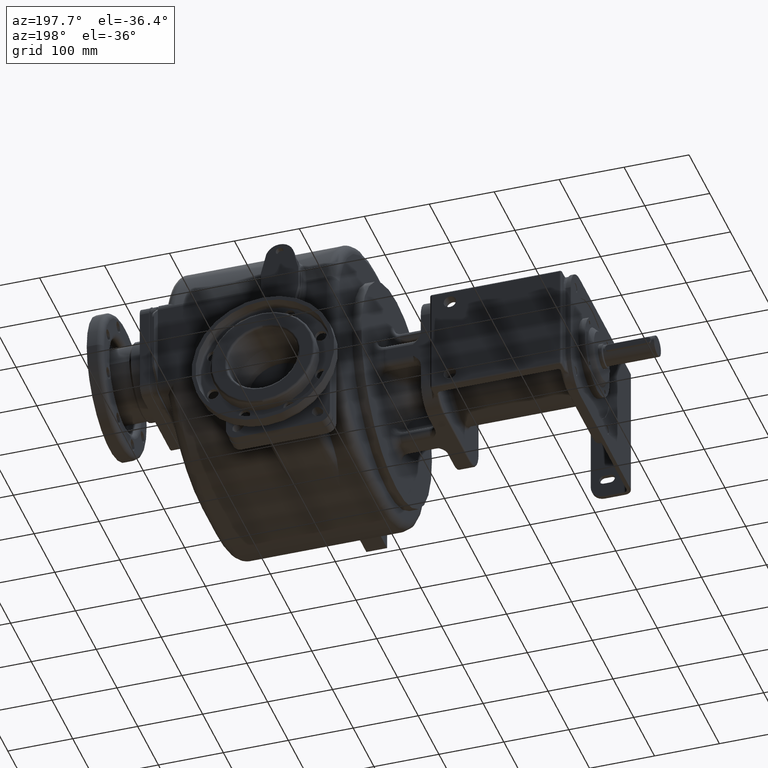
[diagram: clean part render]
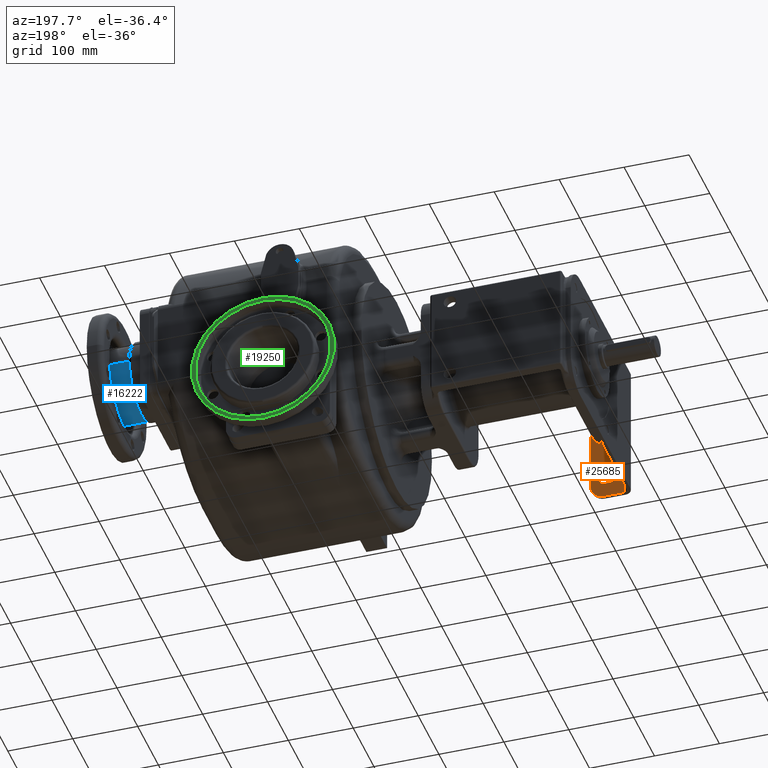
[diagram: same view with three faces highlighted in distinct colors, each labeled with its STEP entity id]
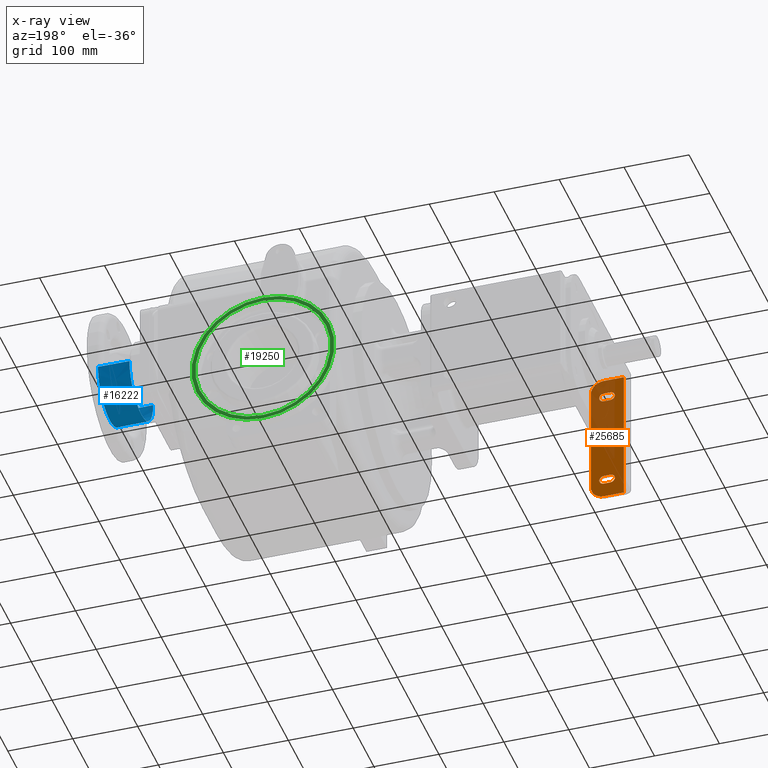
[diagram: x-ray of the same camera — body ghosted, the three highlighted faces saturated]
A machine part, auxiliary view with three faces highlighted in distinct colors.
The next image is the same camera in x-ray (body ghosted, the three faces saturated) — at least one of them is partly hidden behind the body in this view.
Their STEP definitions:

[orange] entity #25685 — the highlighted planar face has unit normal (0, 1, 0).
#8885=CARTESIAN_POINT('',(-3.515E2,6.E0,8.5E1));
#8886=DIRECTION('',(0.E0,1.E0,0.E0));
#8887=DIRECTION('',(0.E0,0.E0,1.E0));
#8888=AXIS2_PLACEMENT_3D('',#8885,#8886,#8887);
#8890=DIRECTION('',(1.E0,0.E0,0.E0));
#8891=VECTOR('',#8890,3.1E1);
#8892=CARTESIAN_POINT('',(-3.825E2,6.E0,1.05E2));
#8893=LINE('',#8892,#8891);
#8894=DIRECTION('',(-1.E0,0.E0,0.E0));
#8895=VECTOR('',#8894,3.1E1);
#8896=CARTESIAN_POINT('',(-3.515E2,6.E0,-1.05E2));
#8897=LINE('',#8896,#8895);
#8898=CARTESIAN_POINT('',(-3.515E2,6.E0,-8.5E1));
#8899=DIRECTION('',(0.E0,1.E0,0.E0));
#8900=DIRECTION('',(1.E0,0.E0,0.E0));
#8901=AXIS2_PLACEMENT_3D('',#8898,#8899,#8900);
#8903=DIRECTION('',(0.E0,0.E0,-1.E0));
#8904=VECTOR('',#8903,1.7E2);
#8905=CARTESIAN_POINT('',(-3.315E2,6.E0,8.5E1));
#8906=LINE('',#8905,#8904);
#8907=DIRECTION('',(1.E0,0.E0,0.E0));
#8908=VECTOR('',#8907,1.E1);
#8909=CARTESIAN_POINT('',(-3.615E2,6.E0,-8.2E1));
#8910=LINE('',#8909,#8908);
#8911=CARTESIAN_POINT('',(-3.615E2,6.E0,-7.5E1));
#8912=DIRECTION('',(0.E0,1.E0,0.E0));
#8913=DIRECTION('',(0.E0,0.E0,-1.E0));
#8914=AXIS2_PLACEMENT_3D('',#8911,#8912,#8913);
#8916=DIRECTION('',(-1.E0,0.E0,0.E0));
#8917=VECTOR('',#8916,1.E1);
#8918=CARTESIAN_POINT('',(-3.515E2,6.E0,-6.8E1));
#8919=LINE('',#8918,#8917);
#8920=CARTESIAN_POINT('',(-3.515E2,6.E0,-7.5E1));
#8921=DIRECTION('',(0.E0,1.E0,0.E0));
#8922=DIRECTION('',(0.E0,0.E0,1.E0));
#8923=AXIS2_PLACEMENT_3D('',#8920,#8921,#8922);
#8925=CARTESIAN_POINT('',(-3.615E2,6.E0,7.5E1));
#8926=DIRECTION('',(0.E0,1.E0,0.E0));
#8927=DIRECTION('',(0.E0,0.E0,-1.E0));
#8928=AXIS2_PLACEMENT_3D('',#8925,#8926,#8927);
#8930=DIRECTION('',(-1.E0,0.E0,0.E0));
#8931=VECTOR('',#8930,1.E1);
#8932=CARTESIAN_POINT('',(-3.515E2,6.E0,8.2E1));
#8933=LINE('',#8932,#8931);
#8934=CARTESIAN_POINT('',(-3.515E2,6.E0,7.5E1));
#8935=DIRECTION('',(0.E0,1.E0,0.E0));
#8936=DIRECTION('',(0.E0,0.E0,1.E0));
#8937=AXIS2_PLACEMENT_3D('',#8934,#8935,#8936);
#8939=DIRECTION('',(1.E0,0.E0,0.E0));
#8940=VECTOR('',#8939,1.E1);
#8941=CARTESIAN_POINT('',(-3.615E2,6.E0,6.8E1));
#8942=LINE('',#8941,#8940);
#8943=DIRECTION('',(0.E0,0.E0,1.E0));
#8944=VECTOR('',#8943,2.1E2);
#8945=CARTESIAN_POINT('',(-3.825E2,6.E0,-1.05E2));
#8946=LINE('',#8945,#8944);
#13723=CARTESIAN_POINT('',(-3.825E2,6.E0,-1.05E2));
#13724=CARTESIAN_POINT('',(-3.825E2,6.E0,1.05E2));
#13725=VERTEX_POINT('',#13723);
#13726=VERTEX_POINT('',#13724);
#13733=CARTESIAN_POINT('',(-3.615E2,6.E0,-8.2E1));
#13734=CARTESIAN_POINT('',(-3.515E2,6.E0,-8.2E1));
#13735=VERTEX_POINT('',#13733);
#13736=VERTEX_POINT('',#13734);
#13737=CARTESIAN_POINT('',(-3.515E2,6.E0,-6.8E1));
#13738=VERTEX_POINT('',#13737);
#13739=CARTESIAN_POINT('',(-3.615E2,6.E0,-6.8E1));
#13740=VERTEX_POINT('',#13739);
#13753=CARTESIAN_POINT('',(-3.515E2,6.E0,1.05E2));
#13754=VERTEX_POINT('',#13753);
#13755=CARTESIAN_POINT('',(-3.315E2,6.E0,8.5E1));
#13756=VERTEX_POINT('',#13755);
#13761=CARTESIAN_POINT('',(-3.315E2,6.E0,-8.5E1));
#13762=VERTEX_POINT('',#13761);
#13763=CARTESIAN_POINT('',(-3.515E2,6.E0,-1.05E2));
#13764=VERTEX_POINT('',#13763);
#13785=CARTESIAN_POINT('',(-3.615E2,6.E0,6.8E1));
#13786=CARTESIAN_POINT('',(-3.615E2,6.E0,8.2E1));
#13787=VERTEX_POINT('',#13785);
#13788=VERTEX_POINT('',#13786);
#13789=CARTESIAN_POINT('',(-3.515E2,6.E0,6.8E1));
#13790=VERTEX_POINT('',#13789);
#13791=CARTESIAN_POINT('',(-3.515E2,6.E0,8.2E1));
#13792=VERTEX_POINT('',#13791);
#25648=CARTESIAN_POINT('',(-3.945E2,6.E0,1.05E2));
#25649=DIRECTION('',(0.E0,1.E0,0.E0));
#25650=DIRECTION('',(0.E0,0.E0,1.E0));
#25651=AXIS2_PLACEMENT_3D('',#25648,#25649,#25650);
#25652=PLANE('',#25651);
#25653=ORIENTED_EDGE('',*,*,#25628,.F.);
#25654=ORIENTED_EDGE('',*,*,#25643,.F.);
#25656=ORIENTED_EDGE('',*,*,#25655,.F.);
#25658=ORIENTED_EDGE('',*,*,#25657,.F.);
#25660=ORIENTED_EDGE('',*,*,#25659,.F.);
#25662=ORIENTED_EDGE('',*,*,#25661,.F.);
#25663=EDGE_LOOP('',(#25653,#25654,#25656,#25658,#25660,#25662));
#25664=FACE_OUTER_BOUND('',#25663,.F.);
#25666=ORIENTED_EDGE('',*,*,#25665,.F.);
#25668=ORIENTED_EDGE('',*,*,#25667,.T.);
#25670=ORIENTED_EDGE('',*,*,#25669,.F.);
#25672=ORIENTED_EDGE('',*,*,#25671,.T.);
#25673=EDGE_LOOP('',(#25666,#25668,#25670,#25672));
#25674=FACE_BOUND('',#25673,.F.);
#25676=ORIENTED_EDGE('',*,*,#25675,.T.);
#25678=ORIENTED_EDGE('',*,*,#25677,.F.);
#25680=ORIENTED_EDGE('',*,*,#25679,.T.);
#25682=ORIENTED_EDGE('',*,*,#25681,.F.);
#25683=EDGE_LOOP('',(#25676,#25678,#25680,#25682));
#25684=FACE_BOUND('',#25683,.F.);
#25685=ADVANCED_FACE('',(#25664,#25674,#25684),#25652,.T.);
#8889=CIRCLE('',#8888,2.E1);
#8902=CIRCLE('',#8901,2.E1);
#8915=CIRCLE('',#8914,7.E0);
#8924=CIRCLE('',#8923,7.E0);
#8929=CIRCLE('',#8928,7.E0);
#8938=CIRCLE('',#8937,7.E0);
#25628=EDGE_CURVE('',#13754,#13756,#8889,.T.);
#25643=EDGE_CURVE('',#13726,#13754,#8893,.T.);
#25655=EDGE_CURVE('',#13725,#13726,#8946,.T.);
#25657=EDGE_CURVE('',#13764,#13725,#8897,.T.);
#25659=EDGE_CURVE('',#13762,#13764,#8902,.T.);
#25661=EDGE_CURVE('',#13756,#13762,#8906,.T.);
#25665=EDGE_CURVE('',#13735,#13736,#8910,.T.);
#25667=EDGE_CURVE('',#13735,#13740,#8915,.T.);
#25669=EDGE_CURVE('',#13738,#13740,#8919,.T.);
#25671=EDGE_CURVE('',#13738,#13736,#8924,.T.);
#25675=EDGE_CURVE('',#13787,#13788,#8929,.T.);
#25677=EDGE_CURVE('',#13792,#13788,#8933,.T.);
#25679=EDGE_CURVE('',#13792,#13790,#8938,.T.);
#25681=EDGE_CURVE('',#13787,#13790,#8942,.T.);

[blue] entity #16222 — the highlighted conical surface has half-angle 0.473 deg.
#2149=CARTESIAN_POINT('',(2.46E2,3.65E2,-1.7E1));
#2150=DIRECTION('',(1.E0,0.E0,0.E0));
#2151=DIRECTION('',(0.E0,-1.E0,0.E0));
#2152=AXIS2_PLACEMENT_3D('',#2149,#2150,#2151);
#2159=CARTESIAN_POINT('',(2.945041233958E2,3.65E2,-1.7E1));
#2160=DIRECTION('',(1.E0,0.E0,0.E0));
#2161=DIRECTION('',(0.E0,-1.E0,0.E0));
#2162=AXIS2_PLACEMENT_3D('',#2159,#2160,#2161);
#2164=DIRECTION('',(-9.999659946355E-1,-8.246791653031E-3,0.E0));
#2165=VECTOR('',#2164,4.850577285231E1);
#2166=CARTESIAN_POINT('',(2.945041233958E2,4.225500170027E2,-1.7E1));
#2167=LINE('',#2166,#2165);
#2173=DIRECTION('',(-9.999659946355E-1,8.246791653028E-3,0.E0));
#2174=VECTOR('',#2173,4.850577285231E1);
#2175=CARTESIAN_POINT('',(2.945041233958E2,3.074499829973E2,-1.7E1));
#2176=LINE('',#2175,#2174);
#12680=CARTESIAN_POINT('',(2.945041233958E2,3.074499829973E2,-1.7E1));
#12682=VERTEX_POINT('',#12680);
#12692=CARTESIAN_POINT('',(2.945041233958E2,4.225500170027E2,-1.7E1));
#12694=VERTEX_POINT('',#12692);
#12815=CARTESIAN_POINT('',(2.46E2,3.0785E2,-1.7E1));
#12816=CARTESIAN_POINT('',(2.46E2,4.2215E2,-1.7E1));
#12817=VERTEX_POINT('',#12815);
#12818=VERTEX_POINT('',#12816);
#16208=CARTESIAN_POINT('',(2.702520616979E2,3.65E2,-1.7E1));
#16209=DIRECTION('',(1.E0,0.E0,0.E0));
#16210=DIRECTION('',(0.E0,1.E0,0.E0));
#16211=AXIS2_PLACEMENT_3D('',#16208,#16209,#16210);
#16212=CONICAL_SURFACE('',#16211,5.735000850134E1,4.725117122322E-1);
#16213=ORIENTED_EDGE('',*,*,#16201,.F.);
#16215=ORIENTED_EDGE('',*,*,#16214,.F.);
#16217=ORIENTED_EDGE('',*,*,#16216,.T.);
#16219=ORIENTED_EDGE('',*,*,#16218,.T.);
#16220=EDGE_LOOP('',(#16213,#16215,#16217,#16219));
#16221=FACE_OUTER_BOUND('',#16220,.F.);
#16222=ADVANCED_FACE('',(#16221),#16212,.T.);
#2153=CIRCLE('',#2152,5.715E1);
#2163=CIRCLE('',#2162,5.755001700268E1);
#16201=EDGE_CURVE('',#12817,#12818,#2153,.T.);
#16214=EDGE_CURVE('',#12682,#12817,#2176,.T.);
#16216=EDGE_CURVE('',#12682,#12694,#2163,.T.);
#16218=EDGE_CURVE('',#12694,#12818,#2167,.T.);

[green] entity #19250 — the highlighted planar face has unit normal (0, 1, 0).
#4688=CARTESIAN_POINT('',(0.E0,5.49E2,-1.555E2));
#4689=DIRECTION('',(0.E0,1.E0,0.E0));
#4690=DIRECTION('',(0.E0,0.E0,-1.E0));
#4691=AXIS2_PLACEMENT_3D('',#4688,#4689,#4690);
#4701=CARTESIAN_POINT('',(0.E0,5.49E2,-1.555E2));
#4702=DIRECTION('',(0.E0,-1.E0,0.E0));
#4703=DIRECTION('',(0.E0,0.E0,-1.E0));
#4704=AXIS2_PLACEMENT_3D('',#4701,#4702,#4703);
#4706=CARTESIAN_POINT('',(0.E0,5.49E2,-1.555E2));
#4707=DIRECTION('',(0.E0,-1.E0,0.E0));
#4708=DIRECTION('',(0.E0,0.E0,-1.E0));
#4709=AXIS2_PLACEMENT_3D('',#4706,#4707,#4708);
#4711=CARTESIAN_POINT('',(0.E0,5.49E2,-1.555E2));
#4712=DIRECTION('',(0.E0,1.E0,0.E0));
#4713=DIRECTION('',(0.E0,0.E0,-1.E0));
#4714=AXIS2_PLACEMENT_3D('',#4711,#4712,#4713);
#12107=CARTESIAN_POINT('',(0.E0,5.49E2,-2.595E2));
#12108=VERTEX_POINT('',#12107);
#12109=CARTESIAN_POINT('',(0.E0,5.49E2,-2.655E2));
#12111=VERTEX_POINT('',#12109);
#12127=CARTESIAN_POINT('',(1.136881445208E-14,5.49E2,-5.15E1));
#12128=VERTEX_POINT('',#12127);
#12129=CARTESIAN_POINT('',(1.185867317174E-14,5.49E2,-4.55E1));
#12131=VERTEX_POINT('',#12129);
#19235=CARTESIAN_POINT('',(0.E0,5.49E2,-1.555E2));
#19236=DIRECTION('',(0.E0,1.E0,0.E0));
#19237=DIRECTION('',(0.E0,0.E0,1.E0));
#19238=AXIS2_PLACEMENT_3D('',#19235,#19236,#19237);
#19239=PLANE('',#19238);
#19240=ORIENTED_EDGE('',*,*,#19214,.F.);
#19241=ORIENTED_EDGE('',*,*,#19230,.T.);
#19242=EDGE_LOOP('',(#19240,#19241));
#19243=FACE_OUTER_BOUND('',#19242,.F.);
#19245=ORIENTED_EDGE('',*,*,#19244,.F.);
#19247=ORIENTED_EDGE('',*,*,#19246,.T.);
#19248=EDGE_LOOP('',(#19245,#19247));
#19249=FACE_BOUND('',#19248,.F.);
#19250=ADVANCED_FACE('',(#19243,#19249),#19239,.T.);
#4692=CIRCLE('',#4691,1.1E2);
#4705=CIRCLE('',#4704,1.1E2);
#4710=CIRCLE('',#4709,1.04E2);
#4715=CIRCLE('',#4714,1.04E2);
#19214=EDGE_CURVE('',#12111,#12131,#4692,.T.);
#19230=EDGE_CURVE('',#12111,#12131,#4705,.T.);
#19244=EDGE_CURVE('',#12108,#12128,#4710,.T.);
#19246=EDGE_CURVE('',#12108,#12128,#4715,.T.);